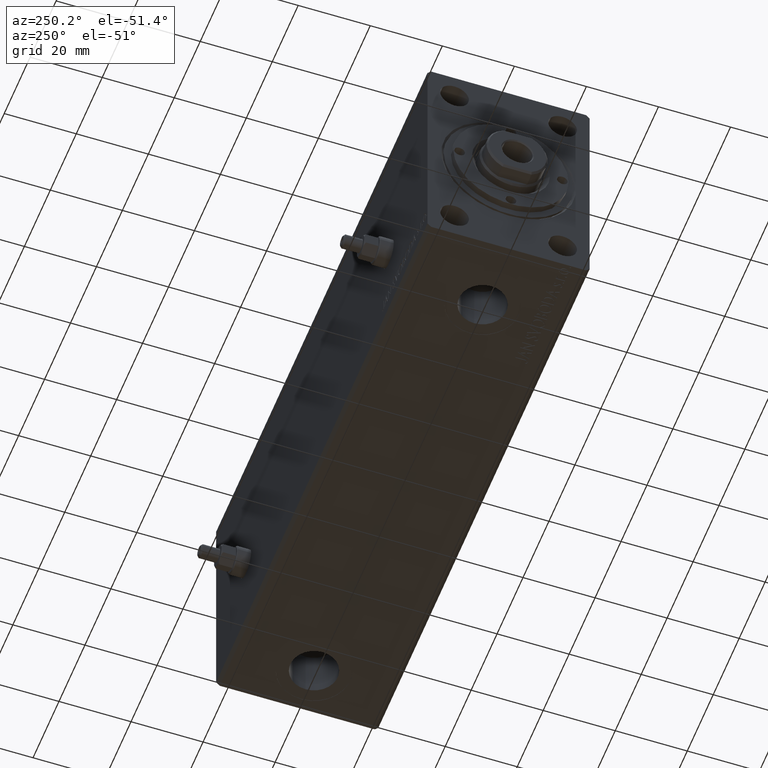
[diagram: clean part render]
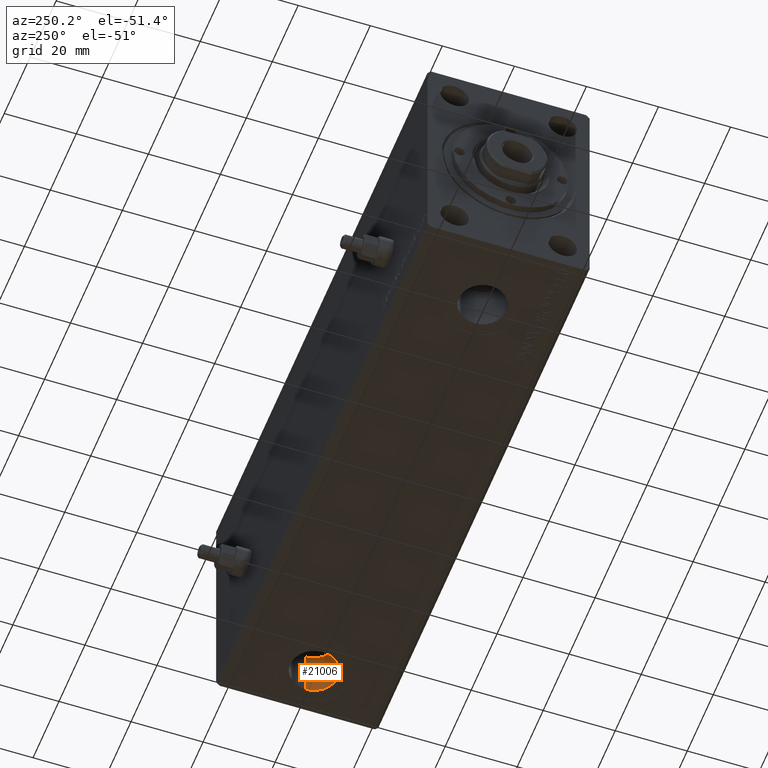
[diagram: same view with one face highlighted and labeled with its STEP entity id]
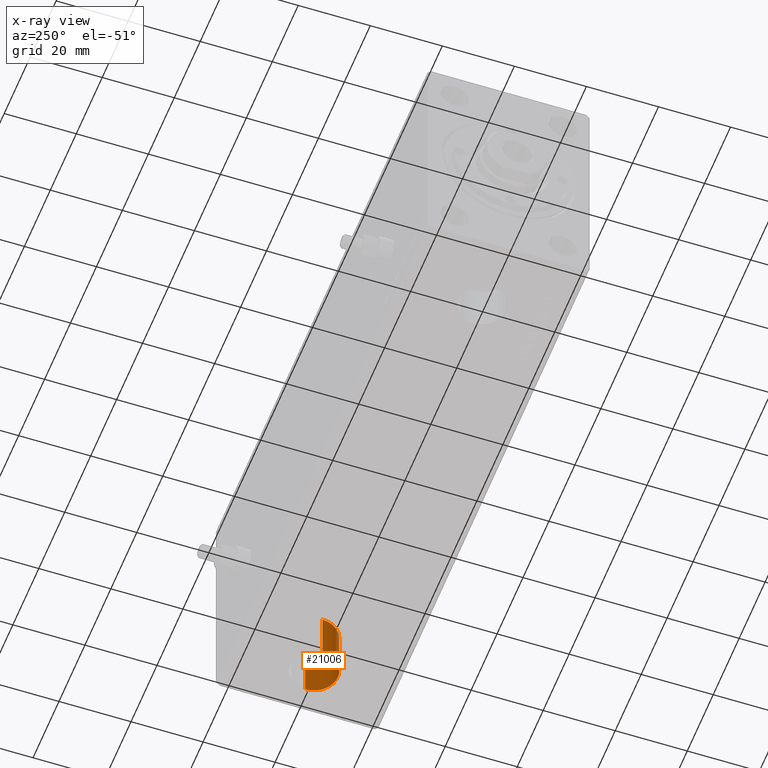
[diagram: x-ray of the same camera — body ghosted, the highlighted face saturated]
A machine part, auxiliary view. The second image highlights one B-rep face of the part: STEP entity #21006.
The next image is the same camera in x-ray: the body ghosted, the highlighted face saturated — about 0% of this face is hidden behind the body in this view.
In plain terms, the highlighted cylindrical surface (edge-blend (fillet) strip) has radius 6.58 mm, axis along (-0, -0, -1).
Its self-contained STEP definition (entity closure, byte-faithful):
#155 = CARTESIAN_POINT ( 'NONE',  ( 149.9999999999999716, -1.210272192541958409E-14, -18.79999999999999716 ) ) ;
#360 = VERTEX_POINT ( 'NONE', #9153 ) ;
#592 = CARTESIAN_POINT ( 'NONE',  ( 143.4199999999999591, -1.210272192541958409E-14, -18.79999999999999716 ) ) ;
#928 = ORIENTED_EDGE ( 'NONE', *, *, #23962, .T. ) ;
#1408 = VERTEX_POINT ( 'NONE', #592 ) ;
#3189 = VECTOR ( 'NONE', #19166, 1000.000000000000000 ) ;
#3582 = FACE_OUTER_BOUND ( 'NONE', #11907, .T. ) ;
#5833 = ORIENTED_EDGE ( 'NONE', *, *, #15168, .T. ) ;
#7655 = DIRECTION ( 'NONE',  ( 0.000000000000000000, 0.000000000000000000, -1.000000000000000000 ) ) ;
#7762 = EDGE_CURVE ( 'NONE', #14415, #1408, #44745, .T. ) ;
#9153 = CARTESIAN_POINT ( 'NONE',  ( 143.4199999999999591, -1.210272192541958409E-14, -32.39999999999999858 ) ) ;
#9321 = EDGE_CURVE ( 'NONE', #1408, #360, #29253, .T. ) ;
#11907 = EDGE_LOOP ( 'NONE', ( #27117, #928, #5833, #23618 ) ) ;
#14066 = DIRECTION ( 'NONE',  ( -0.000000000000000000, -0.000000000000000000, -1.000000000000000000 ) ) ;
#14405 = VECTOR ( 'NONE', #31532, 1000.000000000000000 ) ;
#14415 = VERTEX_POINT ( 'NONE', #36512 ) ;
#14499 = CARTESIAN_POINT ( 'NONE',  ( 149.9999999999999716, -1.210272192541958409E-14, -18.79999999999999716 ) ) ;
#15168 = EDGE_CURVE ( 'NONE', #17969, #360, #20872, .T. ) ;
#17509 = CYLINDRICAL_SURFACE ( 'NONE', #30523, 6.580000000000002736 ) ;
#17969 = VERTEX_POINT ( 'NONE', #25982 ) ;
#18094 = DIRECTION ( 'NONE',  ( 0.000000000000000000, 0.000000000000000000, -1.000000000000000000 ) ) ;
#19166 = DIRECTION ( 'NONE',  ( -0.000000000000000000, -0.000000000000000000, -1.000000000000000000 ) ) ;
#20872 = CIRCLE ( 'NONE', #21612, 6.580000000000002736 ) ;
#21006 = ADVANCED_FACE ( 'NONE', ( #3582 ), #17509, .F. ) ;
#21259 = CARTESIAN_POINT ( 'NONE',  ( 156.5799999999999557, -1.129690433158062347E-14, -18.79999999999999716 ) ) ;
#21612 = AXIS2_PLACEMENT_3D ( 'NONE', #35460, #18094, #39550 ) ;
#23618 = ORIENTED_EDGE ( 'NONE', *, *, #9321, .F. ) ;
#23962 = EDGE_CURVE ( 'NONE', #14415, #17969, #42051, .T. ) ;
#25291 = DIRECTION ( 'NONE',  ( -1.000000000000000000, 0.000000000000000000, 0.000000000000000000 ) ) ;
#25982 = CARTESIAN_POINT ( 'NONE',  ( 156.5799999999999557, -1.129690433158062189E-14, -32.39999999999999858 ) ) ;
#27117 = ORIENTED_EDGE ( 'NONE', *, *, #7762, .F. ) ;
#28459 = DIRECTION ( 'NONE',  ( -1.000000000000000000, 0.000000000000000000, 0.000000000000000000 ) ) ;
#29253 = LINE ( 'NONE', #36762, #3189 ) ;
#30131 = AXIS2_PLACEMENT_3D ( 'NONE', #14499, #7655, #28459 ) ;
#30523 = AXIS2_PLACEMENT_3D ( 'NONE', #155, #14066, #25291 ) ;
#31532 = DIRECTION ( 'NONE',  ( -0.000000000000000000, -0.000000000000000000, -1.000000000000000000 ) ) ;
#35460 = CARTESIAN_POINT ( 'NONE',  ( 149.9999999999999716, -1.210272192541958409E-14, -32.39999999999999858 ) ) ;
#36512 = CARTESIAN_POINT ( 'NONE',  ( 156.5799999999999557, -1.129690433158062189E-14, -18.79999999999999716 ) ) ;
#36762 = CARTESIAN_POINT ( 'NONE',  ( 143.4199999999999591, -1.210272192541958409E-14, -18.79999999999999716 ) ) ;
#39550 = DIRECTION ( 'NONE',  ( -1.000000000000000000, 0.000000000000000000, 0.000000000000000000 ) ) ;
#42051 = LINE ( 'NONE', #21259, #14405 ) ;
#44745 = CIRCLE ( 'NONE', #30131, 6.580000000000002736 ) ;